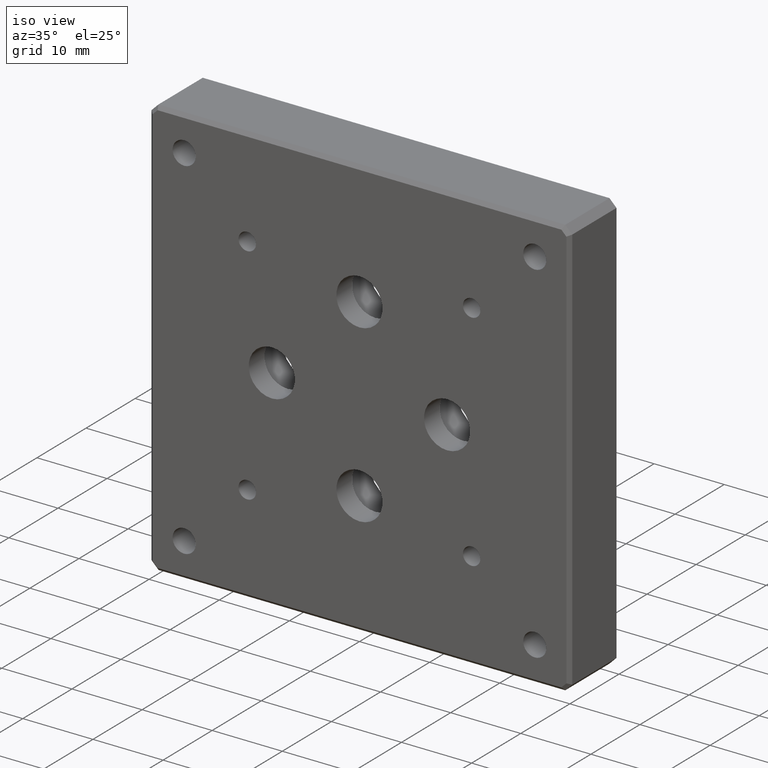
[diagram: clean part render]
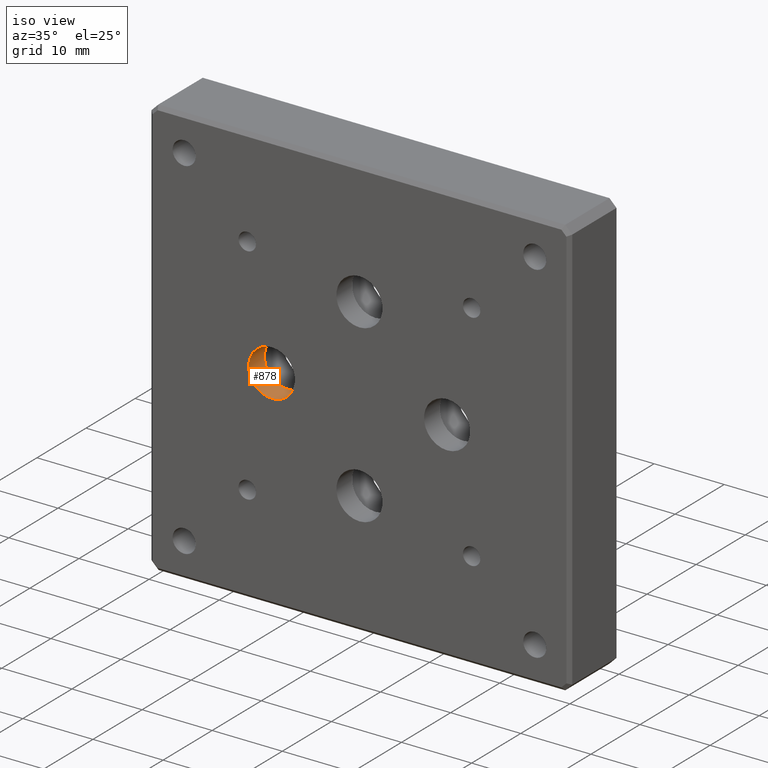
[diagram: same view with one face highlighted and labeled with its STEP entity id]
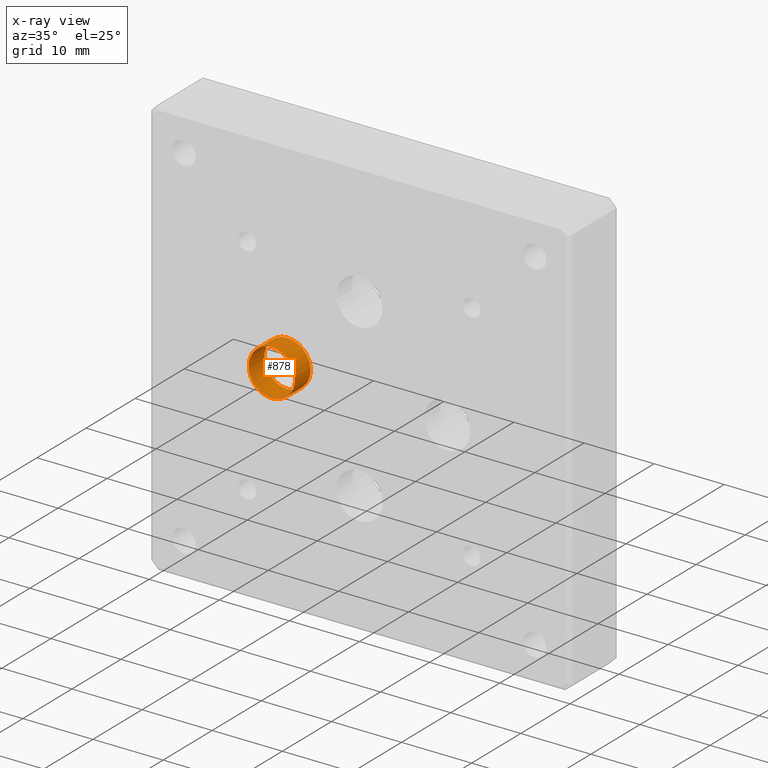
[diagram: x-ray of the same camera — body ghosted, the highlighted face saturated]
A machine part, iso view. The second image highlights one B-rep face of the part: STEP entity #878.
The next image is the same camera in x-ray: the body ghosted, the highlighted face saturated — about 0% of this face is hidden behind the body in this view.
In plain terms, the highlighted cylindrical surface (bore or boss wall) has radius 3.3 mm, axis along (-0, 1, -0).
Its self-contained STEP definition (entity closure, byte-faithful):
#20 = DIRECTION ( 'NONE',  ( -0.000000000000000000, 1.000000000000000000, -0.000000000000000000 ) ) ;
#103 = AXIS2_PLACEMENT_3D ( 'NONE', #662, #20, #630 ) ;
#165 = DIRECTION ( 'NONE',  ( -0.000000000000000000, 1.000000000000000000, -0.000000000000000000 ) ) ;
#221 = AXIS2_PLACEMENT_3D ( 'NONE', #1039, #311, #817 ) ;
#311 = DIRECTION ( 'NONE',  ( -0.000000000000000000, 1.000000000000000000, -0.000000000000000000 ) ) ;
#339 = ORIENTED_EDGE ( 'NONE', *, *, #622, .F. ) ;
#349 = ORIENTED_EDGE ( 'NONE', *, *, #1475, .T. ) ;
#362 = VERTEX_POINT ( 'NONE', #379 ) ;
#379 = CARTESIAN_POINT ( 'NONE',  ( -12.49999999999999467, 0.000000000000000000, 3.300000000000000711 ) ) ;
#389 = EDGE_LOOP ( 'NONE', ( #339 ) ) ;
#493 = CARTESIAN_POINT ( 'NONE',  ( -12.49999999999999467, 3.200000000000003286, 3.300000000000002487 ) ) ;
#521 = CARTESIAN_POINT ( 'NONE',  ( -12.49999999999999467, 10.00000000000000000, 3.469446951953614189E-15 ) ) ;
#557 = EDGE_LOOP ( 'NONE', ( #349 ) ) ;
#622 = EDGE_CURVE ( 'NONE', #362, #362, #1309, .T. ) ;
#630 = DIRECTION ( 'NONE',  ( 0.000000000000000000, 0.000000000000000000, 1.000000000000000000 ) ) ;
#662 = CARTESIAN_POINT ( 'NONE',  ( -12.49999999999999467, 3.200000000000003286, 3.469446951953614189E-15 ) ) ;
#764 = FACE_OUTER_BOUND ( 'NONE', #557, .T. ) ;
#817 = DIRECTION ( 'NONE',  ( 0.000000000000000000, 0.000000000000000000, 1.000000000000000000 ) ) ;
#878 = ADVANCED_FACE ( 'NONE', ( #1377, #764 ), #1245, .F. ) ;
#1006 = DIRECTION ( 'NONE',  ( 0.000000000000000000, 0.000000000000000000, 1.000000000000000000 ) ) ;
#1039 = CARTESIAN_POINT ( 'NONE',  ( -12.49999999999999467, 0.000000000000000000, 3.469446951953614189E-15 ) ) ;
#1245 = CYLINDRICAL_SURFACE ( 'NONE', #1277, 3.299999999999998046 ) ;
#1277 = AXIS2_PLACEMENT_3D ( 'NONE', #521, #165, #1006 ) ;
#1309 = CIRCLE ( 'NONE', #221, 3.299999999999997158 ) ;
#1377 = FACE_OUTER_BOUND ( 'NONE', #389, .T. ) ;
#1443 = CIRCLE ( 'NONE', #103, 3.299999999999998934 ) ;
#1475 = EDGE_CURVE ( 'NONE', #1540, #1540, #1443, .T. ) ;
#1540 = VERTEX_POINT ( 'NONE', #493 ) ;